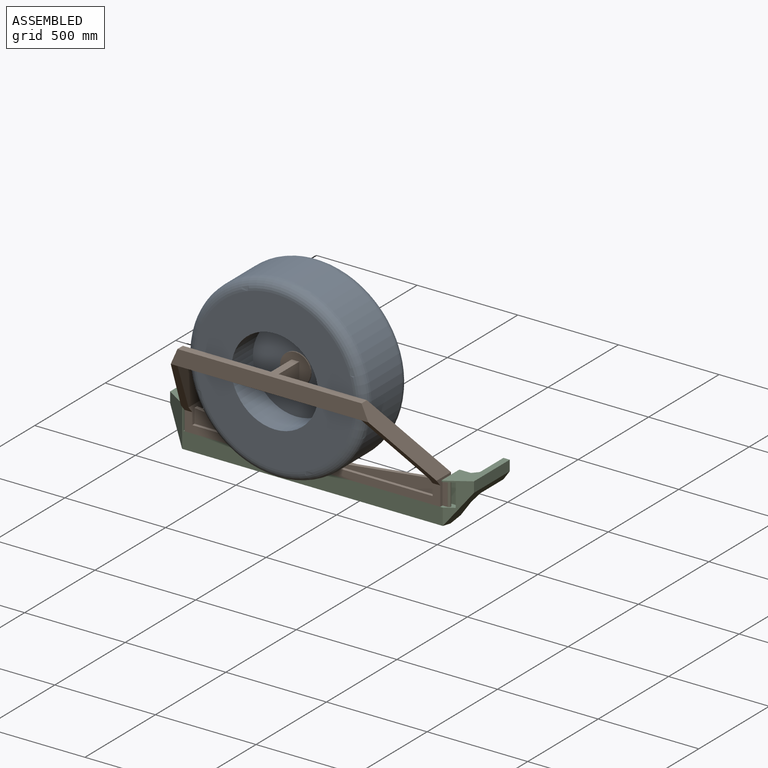
[diagram: assembled view]
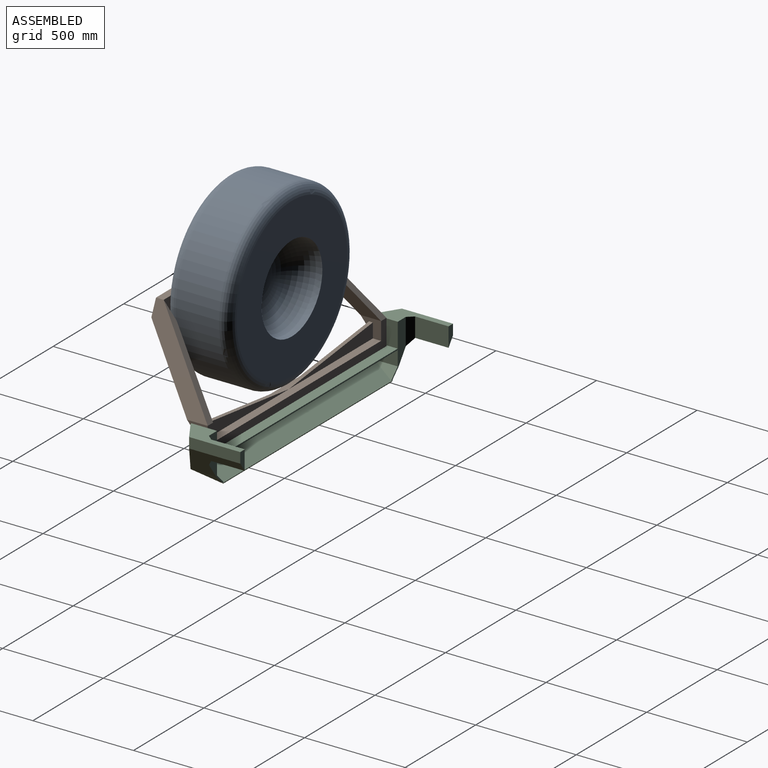
[diagram: assembled view, second angle]
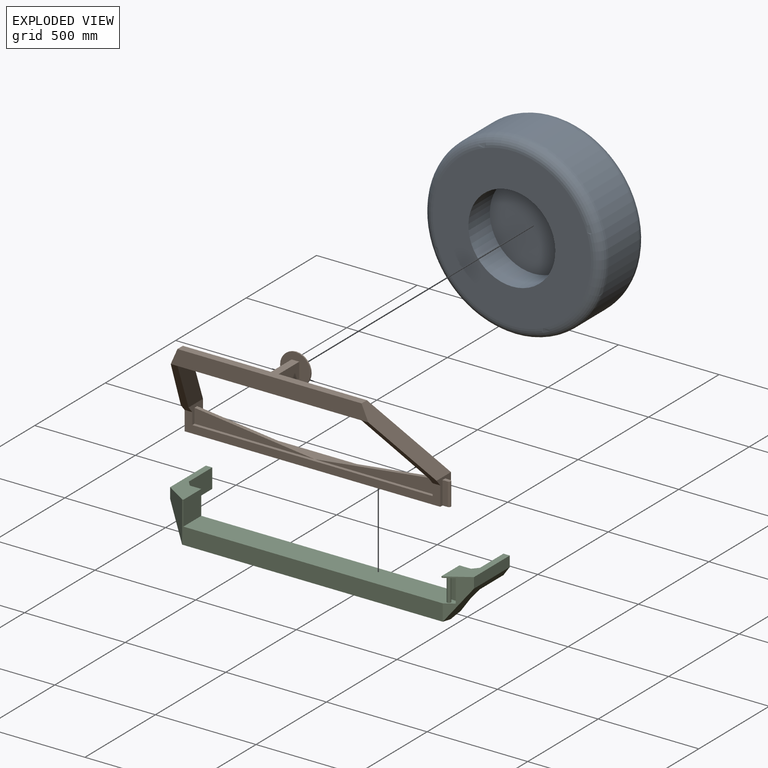
[diagram: exploded view]
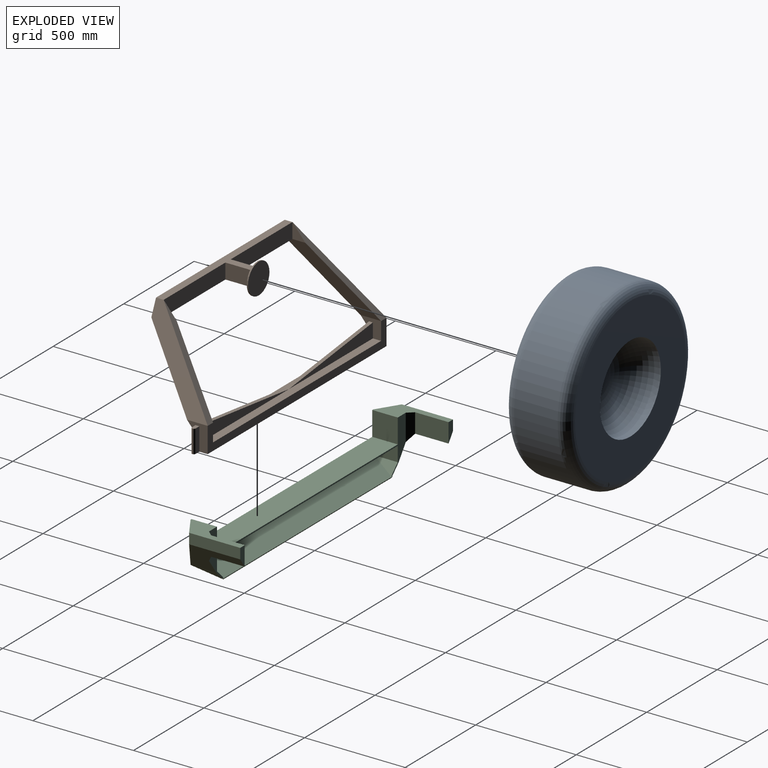
[diagram: exploded view, second angle]
ASSEMBLY  parts=3 mates=2
PART A: 10 faces, bbox 962.2x317.5x962.2 mm
  f0: cylinder r=215.9mm len=431.8mm, axis (0,1,0), area 8614mm2, adj f4,f9
  f1: cylinder r=215.9mm len=431.8mm, axis (0,1,0), area 206736.7mm2, adj f3,f5
  f2: cylinder r=444.5mm len=889mm, axis (0,1,0), area 602981.9mm2, adj f7,f8
  f3: plane 787.4x787.4mm, normal (0,-1,0), area 340507.4mm2, adj f1,f8
  f4: plane 787.4x787.4mm, normal (0,1,0), area 340507.4mm2, adj f0,f7
  f5: plane 431.8x431.8mm, normal (0,-1,0), area 146438.5mm2, adj f1
  f6: plane 127x127mm, normal (0,1,0), area 12667.7mm2, adj f9
  f7: torus R=393.7mm, axis (0,-1,0), area 213606.3mm2, adj f2,f4
  f8: torus R=393.7mm, axis (0,-1,0), area 213606.3mm2, adj f2,f3
  f9: torus R=63.5mm, axis (0,-1,0), area 241443.9mm2, adj f0,f6
PART B: 39 faces, bbox 1304.9x381x571.5 mm
  f0: plane 438.15x76.2mm, normal (0,1,0), area 33387mm2, adj f6,f13,f17,f35
  f1: plane 1193.8x41.28mm, normal (0,0,1), area 49274.1mm2, adj f2,f4,f15,f29,f32
  f2: plane 102.39x88.9mm, normal (-1,0,0), area 5816.3mm2, adj f1,f3,f9,f14,f15,f22,f31,f32
  f3: plane 1193.8x15.88mm, normal (0,0,1), area 18951.6mm2, adj f2,f4,f14,f30,f33
  f4: plane 102.39x88.9mm, normal (1,0,0), area 5816.3mm2, adj f1,f3,f14,f15,f19,f21,f28,f29
  f5: plane 127x102.39mm, normal (1,0,0), area 7906.6mm2, adj f9,f14,f15,f16,f23,f25,f26,f27
  f6: plane 914.4x184.15mm, normal (0,0,1), area 40403.1mm2, adj f0,f8,f18,f20,f23,f34,f35,f36
  f7: plane 127x102.39mm, normal (-1,0,0), area 10084mm2, adj f14,f15,f16,f19,f20
  f8: plane 981.08x76.2mm, normal (0,-1,0), area 72217.6mm2, adj f6,f9,f17,f19,f20,f23
  f9: plane 361.24x304.8mm, normal (0,-0.76,-0.64), area 16979.3mm2, adj f2,f5,f8,f14,f22,f23
  f10: plane 406.4x342.9mm, normal (0,0.76,0.64), area 17093.6mm2, adj f11,f15,f22,f23
  f11: plane 76.2x64.29mm, normal (-1,0,0), area 2449.6mm2, adj f10,f18,f22
  f12: plane 406.4x342.9mm, normal (0,0.76,0.64), area 17093.6mm2, adj f13,f15,f20,f21
  f13: plane 76.2x64.29mm, normal (1,0,0), area 2449.6mm2, adj f0,f12,f21
  f14: plane 1270x95.96mm, normal (0,-1,0), area 52795.6mm2, adj f2,f3,f4,f5,f7,f9,f16,f19
  f15: plane 1270x127mm, normal (0,1,0), area 55161.2mm2, adj f1,f2,f4,f5,f7,f10,f12,f16
  f16: plane 1304.93x76.2mm, normal (0,0,-1), area 97400.4mm2, adj f5,f7,f14,f15,f24,f25,f26
  f17: plane 914.4x184.15mm, normal (0,0,-1), area 40403.1mm2, adj f0,f8,f18,f21,f22,f34,f35,f36
  f18: plane 438.15x76.2mm, normal (0,1,0), area 33387mm2, adj f6,f11,f17,f34
  f19: plane 361.24x304.8mm, normal (0,-0.76,-0.64), area 16979.3mm2, adj f4,f7,f8,f14,f20,f21
  f20: plane 406.4x381mm, normal (-0.92,0,0.4), area 42747.3mm2, adj f6,f7,f8,f12,f19
  f21: plane 381x330.2mm, normal (0.92,0,-0.39), area 36711.9mm2, adj f4,f12,f13,f17,f19
  f22: plane 381x330.2mm, normal (-0.92,0,-0.39), area 36711.9mm2, adj f2,f9,f10,f11,f17
  f23: plane 406.4x381mm, normal (0.92,0,0.4), area 42747.3mm2, adj f5,f6,f8,f9,f10
  f24: cylinder r=9.53mm len=114.3mm, axis (0,0,-1), area 3420.3mm2, adj f16,f25,f26,f27
  f25: plane 114.3x25.4mm, normal (0,1,0), area 2903.2mm2, adj f5,f16,f24,f27
  f26: plane 114.3x25.4mm, normal (0,-1,0), area 2903.2mm2, adj f5,f16,f24,f27
  f27: plane 34.93x19.05mm, normal (0,0,1), area 626.4mm2, adj f5,f24,f25,f26
  f28: plane 596.9x71.63mm, normal (0.12,0,0.99), area 11452.5mm2, adj f4,f29,f30,f31
  f29: plane 596.9x71.63mm, normal (0,1,0), area 21377.4mm2, adj f1,f4,f28
  f30: plane 596.9x71.63mm, normal (0,-1,0), area 21377.4mm2, adj f3,f4,f28
  f31: plane 596.9x71.63mm, normal (-0.12,0,0.99), area 11452.5mm2, adj f2,f28,f32,f33
  f32: plane 596.9x71.63mm, normal (0,1,0), area 21377.4mm2, adj f1,f2,f31
  f33: plane 596.9x71.63mm, normal (0,-1,0), area 21377.4mm2, adj f2,f3,f31
  f34: plane 146.05x76.2mm, normal (1,0,0), area 11129mm2, adj f6,f17,f18,f36
  f35: plane 146.05x76.2mm, normal (-1,0,0), area 11129mm2, adj f0,f6,f17,f36
  f36: plane 152.4x152.4mm, normal (0,-1,0), area 15338.2mm2, adj f6,f17,f34,f35,f37
  f37: cylinder r=76.2mm len=152.4mm, axis (0,-1,0), area 3040.2mm2, adj f36,f38
  f38: plane 152.4x152.4mm, normal (0,1,0), area 18241.5mm2, adj f37
PART C: 42 faces, bbox 1510x321.9x254 mm
  f0: plane 6.35x6.35mm, normal (0,-1,0), area 40.3mm2, adj f1,f22,f23,f41
  f1: plane 203.2x107.3mm, normal (0.53,-0.84,0), area 10173.8mm2, adj f0,f19,f22,f24,f28,f30,f39,f41
  f2: plane 1277.44x112.26mm, normal (0,0.37,0.93), area 149069.3mm2, adj f6,f8,f10,f31,f32,f33,f35,f36
  f3: plane 120.65x73.57mm, normal (1,0,0), area 8876.2mm2, adj f5,f10,f17,f36
  f4: plane 1.59x1.27mm, normal (-1,0,0), area 1mm2, adj f5,f6,f34
  f5: plane 1282.7x76.2mm, normal (0,1,0), area 97740.8mm2, adj f3,f4,f6,f16,f17,f18,f33,f34
  f6: plane 1282.7x10.75mm, normal (0,0,1), area 13746.8mm2, adj f2,f4,f5,f16,f33,f34,f36,f37
  f7: plane 1295.4x127mm, normal (0,-0.37,-0.93), area 170240.4mm2, adj f8,f24,f31,f32
  f8: plane 1205.59x5.9mm, normal (0,0.93,-0.37), area 7618.1mm2, adj f2,f7,f31,f32
  f9: plane 6.35x0.09mm, normal (0,0,-1), area 0.6mm2, adj f10,f18,f30,f35
  f10: plane 1397x247.16mm, normal (0,1,0), area 28125.9mm2, adj f2,f3,f9,f11,f17,f18,f19,f20
  f11: plane 131.48x28.77mm, normal (0.76,0.66,0), area 4337.8mm2, adj f10,f12,f21,f29
  f12: plane 166.17x96.22mm, normal (1,0,0), area 15988.9mm2, adj f11,f13,f21,f29
  f13: plane 96.22x31.52mm, normal (0,1,0), area 2331.9mm2, adj f12,f14,f21,f29
  f14: plane 254x51.72mm, normal (-1,0,0), area 13136mm2, adj f13,f15,f21,f29
  f15: plane 203.2x107.3mm, normal (-0.53,-0.84,0), area 16187.2mm2, adj f14,f21,f24,f29
  f16: plane 1.59x1.27mm, normal (1,0,0), area 1mm2, adj f5,f6,f37
  f17: plane 1282.7x120.65mm, normal (0,0,-1), area 154757.8mm2, adj f3,f5,f10,f18
  f18: plane 120.65x76.2mm, normal (-1,0,0), area 8876.4mm2, adj f5,f9,f10,f17,f33,f35
  f19: plane 1333.5x127mm, normal (0,0,1), area 164573mm2, adj f1,f10,f20,f23,f24,f38,f39,f40
  f20: plane 127x120.65mm, normal (1,0,0), area 15322.6mm2, adj f10,f19,f21,f24
  f21: plane 321.94x113.65mm, normal (0,0,1), area 17293.4mm2, adj f10,f11,f12,f13,f14,f15,f20,f24
  f22: plane 321.94x113.65mm, normal (0,0,1), area 17293.4mm2, adj f0,f1,f10,f23,f25,f26,f27,f28
  f23: plane 127x120.65mm, normal (-1,0,0), area 9516.1mm2, adj f0,f10,f19,f22,f38,f41
  f24: plane 1295.4x203.2mm, normal (0,-1,0), area 107701.4mm2, adj f1,f7,f15,f19,f20,f21
  f25: plane 96.22x31.52mm, normal (0,1,0), area 2331.9mm2, adj f22,f26,f28,f30
  f26: plane 166.17x96.22mm, normal (-1,0,0), area 15988.9mm2, adj f22,f25,f27,f30
  f27: plane 131.48x28.77mm, normal (-0.76,0.66,0), area 4337.8mm2, adj f10,f22,f26,f30
  f28: plane 254x51.72mm, normal (1,0,0), area 13136mm2, adj f1,f22,f25,f30
  f29: plane 321.94x151.48mm, normal (-0.82,0,-0.58), area 28523.3mm2, adj f10,f11,f12,f13,f14,f15,f31
  f30: plane 321.94x151.48mm, normal (0.82,0,-0.58), area 28523.1mm2, adj f1,f9,f10,f25,f26,f27,f28,f32
  f31: plane 129.36x50.8mm, normal (-0.71,0,-0.71), area 4573.4mm2, adj f2,f7,f8,f10,f29
  f32: plane 129.36x50.8mm, normal (0.71,0,-0.71), area 4570.3mm2, adj f2,f7,f8,f30,f35
  f33: plane 120.65x46.59mm, normal (-0.71,0,0.71), area 3855.3mm2, adj f2,f5,f6,f18,f34,f35
  f34: plane 4.88x2.63mm, normal (-0.62,-0.49,-0.62), area 6.1mm2, adj f4,f5,f6,f33
  f35: plane 52.94x46.59mm, normal (0,1,0), area 398.2mm2, adj f2,f9,f18,f32,f33
  f36: plane 120.65x46.59mm, normal (0.71,0,0.71), area 3858.4mm2, adj f2,f3,f5,f6,f10,f37
  f37: plane 4.88x2.63mm, normal (0.62,-0.49,-0.62), area 6.1mm2, adj f5,f6,f16,f36
  f38: plane 114.3x50.8mm, normal (0,-1,0), area 5806.4mm2, adj f19,f23,f39,f41
  f39: plane 114.3x22.66mm, normal (-1,0,0), area 2589.6mm2, adj f1,f19,f38,f41
  f40: cylinder r=9.53mm len=114.3mm, axis (0,0,1), area 6840.6mm2, adj f19,f41
  f41: plane 50.8x50.8mm, normal (0,0,-1), area 1670.1mm2, adj f0,f1,f23,f38,f39,f40
PLACE A rot(axis=(0,0,1),0deg) t=(-104.35,314.22,502.53)mm
PLACE B rot(axis=(0,0,1),0deg) t=(-104.32,263.42,7.23)mm
PLACE C t=(-104.33,263.77,0.88)mm fixed
MATE revolute B.f24 <-> C.f40  axis (0,0,-1) through (556.07,289.17,7.23)mm
MATE fastened A.f0 <-> B.f37  axis (0,-1,0) through (-104.26,149.12,502.53)mm
